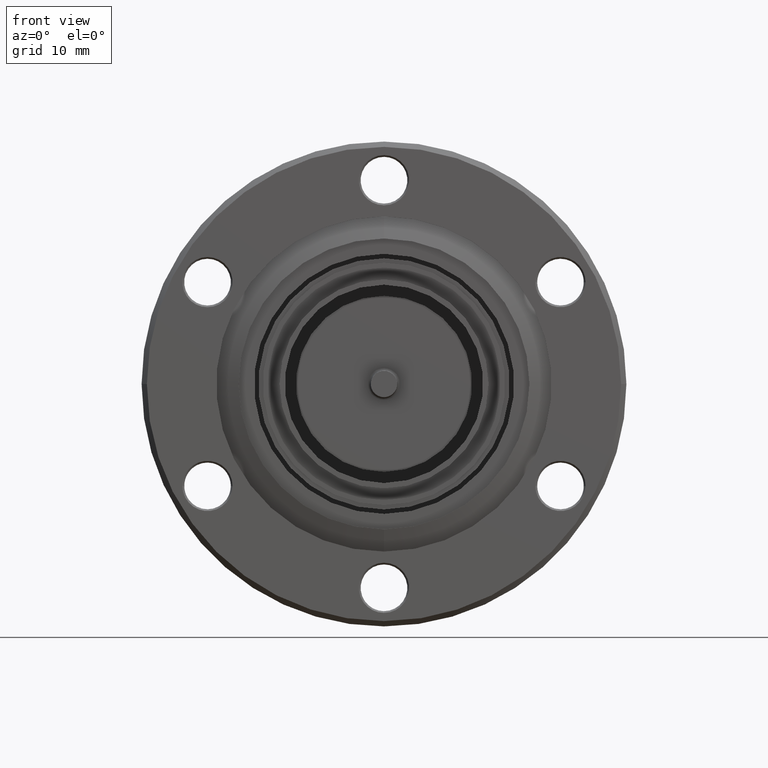
[diagram: clean part render]
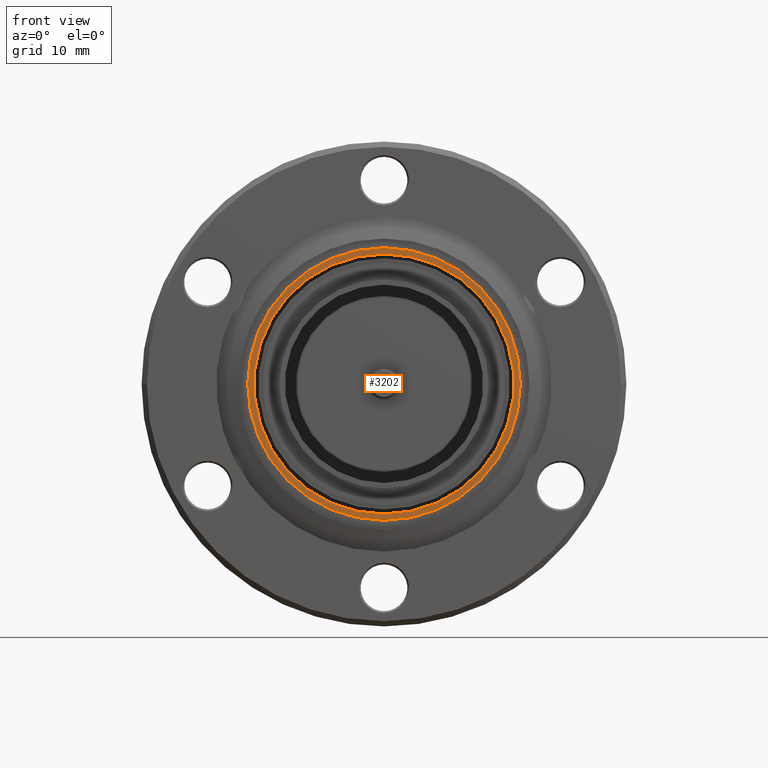
[diagram: same view with one face highlighted and labeled with its STEP entity id]
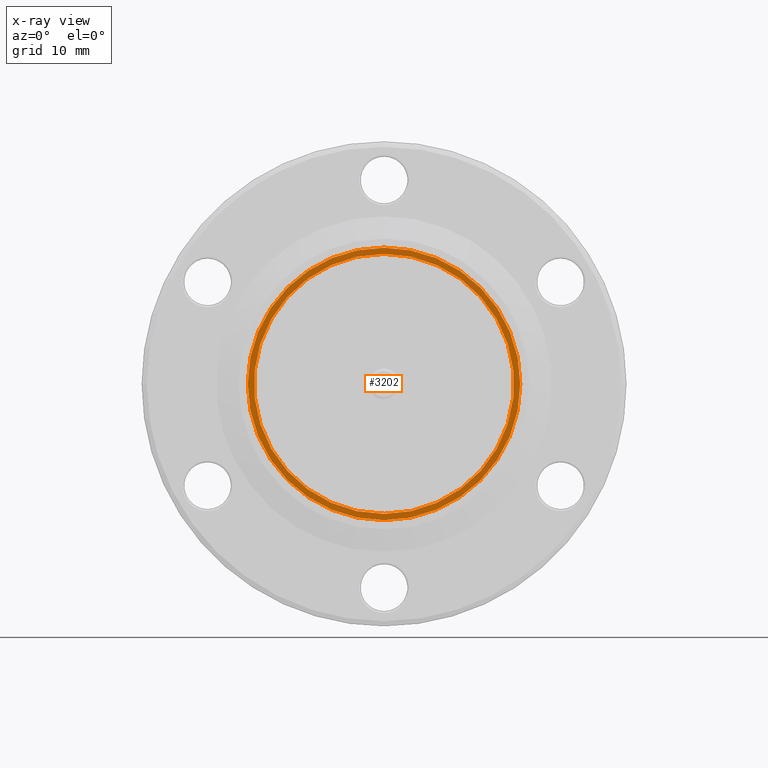
[diagram: x-ray of the same camera — body ghosted, the highlighted face saturated]
A machine part, front view. The second image highlights one B-rep face of the part: STEP entity #3202.
The next image is the same camera in x-ray: the body ghosted, the highlighted face saturated — about 0% of this face is hidden behind the body in this view.
In plain terms, the highlighted planar face has unit normal (0, -1, 0).
Its self-contained STEP definition (entity closure, byte-faithful):
#9 = AXIS2_PLACEMENT_3D ( 'NONE', #1787, #1786, #1791 ) ;
#94 = CIRCLE ( 'NONE', #555, 0.7730000000000000200 ) ;
#106 = CIRCLE ( 'NONE', #553, 0.7375000000000002700 ) ;
#235 = DIRECTION ( 'NONE',  ( 0.0000000000000000000, -9.260501673438177200E-017, -1.000000000000000000 ) ) ;
#236 = DIRECTION ( 'NONE',  ( -6.678368497779937400E-019, 1.000000000000000000, -1.335712616091103800E-016 ) ) ;
#237 = CARTESIAN_POINT ( 'NONE',  ( 2.075558265860586800E-035, -0.4490000000000031700, 4.465007797634113000E-033 ) ) ;
#534 = DIRECTION ( 'NONE',  ( 0.0000000000000000000, 0.0000000000000000000, -1.000000000000000000 ) ) ;
#535 = DIRECTION ( 'NONE',  ( 0.0000000000000000000, 1.000000000000000000, 0.0000000000000000000 ) ) ;
#536 = CARTESIAN_POINT ( 'NONE',  ( 0.0000000000000000000, -0.4490000000000063900, 0.0000000000000000000 ) ) ;
#553 = AXIS2_PLACEMENT_3D ( 'NONE', #1958, #1959, #1960 ) ;
#555 = AXIS2_PLACEMENT_3D ( 'NONE', #1932, #1933, #1934 ) ;
#669 = EDGE_LOOP ( 'NONE', ( #3101, #3106 ) ) ;
#677 = EDGE_LOOP ( 'NONE', ( #3117, #3097 ) ) ;
#1093 = EDGE_CURVE ( 'NONE', #1726, #1720, #3158, .T. ) ;
#1095 = EDGE_CURVE ( 'NONE', #1719, #1733, #3159, .T. ) ;
#1268 = AXIS2_PLACEMENT_3D ( 'NONE', #536, #535, #534 ) ;
#1326 = AXIS2_PLACEMENT_3D ( 'NONE', #237, #236, #235 ) ;
#1376 = EDGE_CURVE ( 'NONE', #1733, #1719, #94, .T. ) ;
#1388 = EDGE_CURVE ( 'NONE', #1720, #1726, #106, .T. ) ;
#1719 = VERTEX_POINT ( 'NONE', #2040 ) ;
#1720 = VERTEX_POINT ( 'NONE', #2041 ) ;
#1726 = VERTEX_POINT ( 'NONE', #2047 ) ;
#1733 = VERTEX_POINT ( 'NONE', #2054 ) ;
#1786 = DIRECTION ( 'NONE',  ( 6.069250942837090400E-019, -1.000000000000000000, 1.301120835842070500E-016 ) ) ;
#1787 = CARTESIAN_POINT ( 'NONE',  ( 0.7373856891501605600, -0.4490000000000031700, -0.01298443054365625000 ) ) ;
#1791 = DIRECTION ( 'NONE',  ( 0.0000000000000000000, -1.301120835842070500E-016, -1.000000000000000000 ) ) ;
#1793 = PLANE ( 'NONE',  #9 ) ;
#1932 = CARTESIAN_POINT ( 'NONE',  ( 0.0000000000000000000, -0.4490000000000063900, 0.0000000000000000000 ) ) ;
#1933 = DIRECTION ( 'NONE',  ( 0.0000000000000000000, 1.000000000000000000, 0.0000000000000000000 ) ) ;
#1934 = DIRECTION ( 'NONE',  ( 0.0000000000000000000, 0.0000000000000000000, -1.000000000000000000 ) ) ;
#1958 = CARTESIAN_POINT ( 'NONE',  ( 2.075558265860586800E-035, -0.4490000000000031700, 4.465007797634113000E-033 ) ) ;
#1959 = DIRECTION ( 'NONE',  ( -6.678368497779937400E-019, 1.000000000000000000, -1.335712616091103800E-016 ) ) ;
#1960 = DIRECTION ( 'NONE',  ( 0.0000000000000000000, -9.260501673438177200E-017, -1.000000000000000000 ) ) ;
#2040 = CARTESIAN_POINT ( 'NONE',  ( 0.0000000000000000000, -0.4490000000000063900, -0.7730000000000000200 ) ) ;
#2041 = CARTESIAN_POINT ( 'NONE',  ( 2.075558265860586800E-035, -0.4490000000000032300, -0.7375000000000002700 ) ) ;
#2047 = CARTESIAN_POINT ( 'NONE',  ( 9.025509173245063500E-017, -0.4490000000000031200, 0.7375000000000002700 ) ) ;
#2054 = CARTESIAN_POINT ( 'NONE',  ( 9.466519757409041500E-017, -0.4490000000000063900, 0.7730000000000000200 ) ) ;
#2553 = FACE_OUTER_BOUND ( 'NONE', #669, .T. ) ;
#2840 = FACE_BOUND ( 'NONE', #677, .T. ) ;
#3097 = ORIENTED_EDGE ( 'NONE', *, *, #1093, .T. ) ;
#3101 = ORIENTED_EDGE ( 'NONE', *, *, #1095, .F. ) ;
#3106 = ORIENTED_EDGE ( 'NONE', *, *, #1376, .F. ) ;
#3117 = ORIENTED_EDGE ( 'NONE', *, *, #1388, .T. ) ;
#3158 = CIRCLE ( 'NONE', #1326, 0.7375000000000002700 ) ;
#3159 = CIRCLE ( 'NONE', #1268, 0.7730000000000000200 ) ;
#3202 = ADVANCED_FACE ( 'NONE', ( #2840, #2553 ), #1793, .T. ) ;